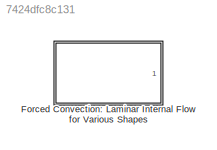
MODEL slx_7424dfc8c131
KIND library
CONFIG AbsTol = auto
CONFIG FixedStep = auto
CONFIG MaxStep = auto
CONFIG MinStep = auto
CONFIG RelTol = 1e-3
CONFIG SampleTimeConstraint = Unconstrained
CONFIG Solver = ode45
CONFIG SolverMode = Auto
CONFIG SolverName = ode45
CONFIG StartTime = 0.0
CONFIG StopTime = 10.0
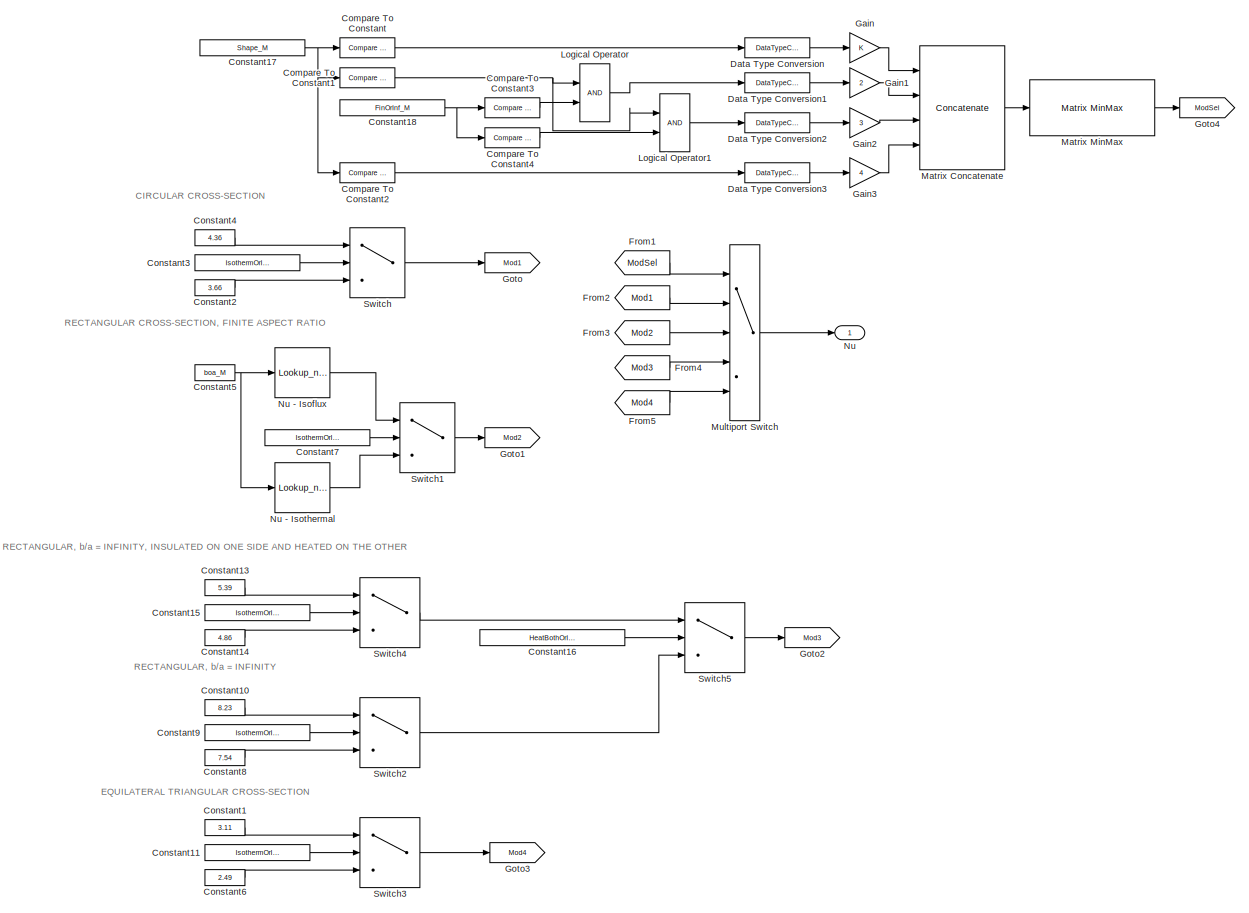
[diagram: Forced Convection: Laminar Internal Flow for Various Shapes - part 1/1, most of the canvas]
BLOCK [SubSystem] Forced Convection: Laminar Internal Flow for Various Shapes
  Ports = [0, 1]
  RequestExecContextInheritance = off
BLOCK [Reference] Forced Convection: Laminar Internal Flow for Various Shapes/Compare To Constant  REF=simulink/Logic and Bit
Operations/Compare
To Constant
  OutDataTypeStr = boolean
  Ports = [1, 1]
  SourceBlock = simulink/Logic and Bit\nOperations/Compare\nTo Constant
  SourceType = Compare To Constant
  ZeroCross = on
  const = 1
  relop = ==
BLOCK [Reference] Forced Convection: Laminar Internal Flow for Various Shapes/Compare To Constant1  REF=simulink/Logic and Bit
Operations/Compare
To Constant
  OutDataTypeStr = boolean
  Ports = [1, 1]
  SourceBlock = simulink/Logic and Bit\nOperations/Compare\nTo Constant
  SourceType = Compare To Constant
  ZeroCross = on
  const = 2
  relop = ==
BLOCK [Reference] Forced Convection: Laminar Internal Flow for Various Shapes/Compare To Constant2  REF=simulink/Logic and Bit
Operations/Compare
To Constant
  OutDataTypeStr = boolean
  Ports = [1, 1]
  SourceBlock = simulink/Logic and Bit\nOperations/Compare\nTo Constant
  SourceType = Compare To Constant
  ZeroCross = on
  const = 3
  relop = ==
BLOCK [Reference] Forced Convection: Laminar Internal Flow for Various Shapes/Compare To Constant3  REF=simulink/Logic and Bit
Operations/Compare
To Constant
  OutDataTypeStr = boolean
  Ports = [1, 1]
  SourceBlock = simulink/Logic and Bit\nOperations/Compare\nTo Constant
  SourceType = Compare To Constant
  ZeroCross = on
  const = 1
  relop = ==
BLOCK [Reference] Forced Convection: Laminar Internal Flow for Various Shapes/Compare To Constant4  REF=simulink/Logic and Bit
Operations/Compare
To Constant
  OutDataTypeStr = boolean
  Ports = [1, 1]
  SourceBlock = simulink/Logic and Bit\nOperations/Compare\nTo Constant
  SourceType = Compare To Constant
  ZeroCross = on
  const = 2
  relop = ==
BLOCK [Constant] Forced Convection: Laminar Internal Flow for Various Shapes/Constant1
  Value = 3.11
BLOCK [Constant] Forced Convection: Laminar Internal Flow for Various Shapes/Constant10
  Value = 8.23
BLOCK [Constant] Forced Convection: Laminar Internal Flow for Various Shapes/Constant11
  Value = IsothermOrIsoflux_M
BLOCK [Constant] Forced Convection: Laminar Internal Flow for Various Shapes/Constant13
  Value = 5.39
BLOCK [Constant] Forced Convection: Laminar Internal Flow for Various Shapes/Constant14
  Value = 4.86
BLOCK [Constant] Forced Convection: Laminar Internal Flow for Various Shapes/Constant15
  Value = IsothermOrIsoflux_M
BLOCK [Constant] Forced Convection: Laminar Internal Flow for Various Shapes/Constant16
  Value = HeatBothOrInsulateOne_M
BLOCK [Constant] Forced Convection: Laminar Internal Flow for Various Shapes/Constant17
  Value = Shape_M
BLOCK [Constant] Forced Convection: Laminar Internal Flow for Various Shapes/Constant18
  Value = FinOrInf_M
BLOCK [Constant] Forced Convection: Laminar Internal Flow for Various Shapes/Constant2
  Value = 3.66
BLOCK [Constant] Forced Convection: Laminar Internal Flow for Various Shapes/Constant3
  Value = IsothermOrIsoflux_M
BLOCK [Constant] Forced Convection: Laminar Internal Flow for Various Shapes/Constant4
  Value = 4.36
BLOCK [Constant] Forced Convection: Laminar Internal Flow for Various Shapes/Constant5
  Value = boa_M
BLOCK [Constant] Forced Convection: Laminar Internal Flow for Various Shapes/Constant6
  Value = 2.49
BLOCK [Constant] Forced Convection: Laminar Internal Flow for Various Shapes/Constant7
  Value = IsothermOrIsoflux_M
BLOCK [Constant] Forced Convection: Laminar Internal Flow for Various Shapes/Constant8
  Value = 7.54
BLOCK [Constant] Forced Convection: Laminar Internal Flow for Various Shapes/Constant9
  Value = IsothermOrIsoflux_M
BLOCK [DataTypeConversion] Forced Convection: Laminar Internal Flow for Various Shapes/Data Type Conversion
  OutDataTypeStr = double
  RndMeth = Floor
  SaturateOnIntegerOverflow = off
BLOCK [DataTypeConversion] Forced Convection: Laminar Internal Flow for Various Shapes/Data Type Conversion1
  OutDataTypeStr = double
  RndMeth = Floor
  SaturateOnIntegerOverflow = off
BLOCK [DataTypeConversion] Forced Convection: Laminar Internal Flow for Various Shapes/Data Type Conversion2
  OutDataTypeStr = double
  RndMeth = Floor
  SaturateOnIntegerOverflow = off
BLOCK [DataTypeConversion] Forced Convection: Laminar Internal Flow for Various Shapes/Data Type Conversion3
  OutDataTypeStr = double
  RndMeth = Floor
  SaturateOnIntegerOverflow = off
BLOCK [From] Forced Convection: Laminar Internal Flow for Various Shapes/From1
  GotoTag = ModSel
BLOCK [From] Forced Convection: Laminar Internal Flow for Various Shapes/From2
  GotoTag = Mod1
BLOCK [From] Forced Convection: Laminar Internal Flow for Various Shapes/From3
  GotoTag = Mod2
BLOCK [From] Forced Convection: Laminar Internal Flow for Various Shapes/From4
  GotoTag = Mod3
BLOCK [From] Forced Convection: Laminar Internal Flow for Various Shapes/From5
  GotoTag = Mod4
BLOCK [Gain] Forced Convection: Laminar Internal Flow for Various Shapes/Gain
  OutDataTypeStr = Inherit: Inherit via internal rule
  ParamDataTypeStr = Inherit: Inherit via internal rule
  SaturateOnIntegerOverflow = off
BLOCK [Gain] Forced Convection: Laminar Internal Flow for Various Shapes/Gain1
  Gain = 2
  OutDataTypeStr = Inherit: Inherit via internal rule
  ParamDataTypeStr = Inherit: Inherit via internal rule
  SaturateOnIntegerOverflow = off
BLOCK [Gain] Forced Convection: Laminar Internal Flow for Various Shapes/Gain2
  Gain = 3
  OutDataTypeStr = Inherit: Inherit via internal rule
  ParamDataTypeStr = Inherit: Inherit via internal rule
  SaturateOnIntegerOverflow = off
BLOCK [Gain] Forced Convection: Laminar Internal Flow for Various Shapes/Gain3
  Gain = 4
  OutDataTypeStr = Inherit: Inherit via internal rule
  ParamDataTypeStr = Inherit: Inherit via internal rule
  SaturateOnIntegerOverflow = off
BLOCK [Goto] Forced Convection: Laminar Internal Flow for Various Shapes/Goto
  GotoTag = Mod1
BLOCK [Goto] Forced Convection: Laminar Internal Flow for Various Shapes/Goto1
  GotoTag = Mod2
BLOCK [Goto] Forced Convection: Laminar Internal Flow for Various Shapes/Goto2
  GotoTag = Mod3
BLOCK [Goto] Forced Convection: Laminar Internal Flow for Various Shapes/Goto3
  GotoTag = Mod4
BLOCK [Goto] Forced Convection: Laminar Internal Flow for Various Shapes/Goto4
  GotoTag = ModSel
BLOCK [Logic] Forced Convection: Laminar Internal Flow for Various Shapes/Logical Operator
  AllPortsSameDT = off
  OutDataTypeStr = boolean
  Ports = [2, 1]
BLOCK [Logic] Forced Convection: Laminar Internal Flow for Various Shapes/Logical Operator1
  AllPortsSameDT = off
  OutDataTypeStr = boolean
  Ports = [2, 1]
BLOCK [Concatenate] Forced Convection: Laminar Internal Flow for Various Shapes/Matrix Concatenate
  ConcatenateDimension = 2
  Mode = Multidimensional array
  NumInputs = 4
  Ports = [4, 1]
BLOCK [Reference] Forced Convection: Laminar Internal Flow for Various Shapes/Matrix MinMax  REF=lib_GenTools_MinMax/Matrix MinMax
  BN_M = gcb
  Ports = [1, 1]
  SourceBlock = lib_GenTools_MinMax/Matrix MinMax
  SourceType = TSAT: Matrix MinMax Block
  all_M = off
  cols_M = off
  minmax_M = off
  rows_M = on
BLOCK [MultiPortSwitch] Forced Convection: Laminar Internal Flow for Various Shapes/Multiport Switch
  InputSameDT = off
  Inputs = 4
  Ports = [5, 1]
  SaturateOnIntegerOverflow = off
BLOCK [Outport] Forced Convection: Laminar Internal Flow for Various Shapes/Nu
  IconDisplay = Port number
BLOCK [Lookup_n-D] Forced Convection: Laminar Internal Flow for Various Shapes/Nu - Isoflux
  BreakpointsForDimension1 = [1 1.43 1.75 2 2.5 3 3.5 4 4.5 5 6 7 8 9 10 12 15 18 20 23 25 28 32 40 47 100]
  InternalRulePriority = Speed
  NumberOfTableDimensions = 1
  Ports = [1, 1]
  RndMeth = Simplest
  Table = [3.6100 3.7300 3.9349 4.1200 4.4722 4.7900 5.0760 5.3300 5.5517 5.7441 6.0556 6.2944 6.4900 6.6673 6.8316 7.1235 7.4767 7.7406 7.8735 8.0187 8.0851 8.1493 8.1899 8.2201 8.2300 8.2300]
BLOCK [Lookup_n-D] Forced Convection: Laminar Internal Flow for Various Shapes/Nu - Isothermal
  BreakpointsForDimension1 = [1 1.43 1.75 2 2.5 3 3.5 4 4.5 5 6 7 8 9 10 12 15 18 20 23 25 28 32 40 45 100]
  InternalRulePriority = Speed
  NumberOfTableDimensions = 1
  Ports = [1, 1]
  RndMeth = Simplest
  Table = [2.9800 3.0800 3.2418 3.3900 3.6839 3.9600 4.2124 4.4400 4.6435 4.8252 5.1332 5.3845 5.6000 5.7968 5.9790 6.3016 6.6904 6.9793 7.1243 7.2825 7.3553 7.4276 7.4800 7.5300 7.5400 7.5400]
BLOCK [Switch] Forced Convection: Laminar Internal Flow for Various Shapes/Switch
  Criteria = u2 > Threshold
  InputSameDT = off
  SaturateOnIntegerOverflow = off
  Threshold = 1.5
BLOCK [Switch] Forced Convection: Laminar Internal Flow for Various Shapes/Switch1
  Criteria = u2 > Threshold
  InputSameDT = off
  SaturateOnIntegerOverflow = off
  Threshold = 1.5
BLOCK [Switch] Forced Convection: Laminar Internal Flow for Various Shapes/Switch2
  Criteria = u2 > Threshold
  InputSameDT = off
  SaturateOnIntegerOverflow = off
  Threshold = 1.5
BLOCK [Switch] Forced Convection: Laminar Internal Flow for Various Shapes/Switch3
  Criteria = u2 > Threshold
  InputSameDT = off
  SaturateOnIntegerOverflow = off
  Threshold = 1.5
BLOCK [Switch] Forced Convection: Laminar Internal Flow for Various Shapes/Switch4
  Criteria = u2 > Threshold
  InputSameDT = off
  SaturateOnIntegerOverflow = off
  Threshold = 1.5
BLOCK [Switch] Forced Convection: Laminar Internal Flow for Various Shapes/Switch5
  Criteria = u2 > Threshold
  InputSameDT = off
  SaturateOnIntegerOverflow = off
  Threshold = 1.5
ANNOTATION Forced Convection: Laminar Internal Flow for Various Shapes: CIRCULAR CROSS-SECTION
ANNOTATION Forced Convection: Laminar Internal Flow for Various Shapes: EQUILATERAL TRIANGULAR CROSS-SECTION
ANNOTATION Forced Convection: Laminar Internal Flow for Various Shapes: RECTANGULAR CROSS-SECTION, FINITE ASPECT RATIO
ANNOTATION Forced Convection: Laminar Internal Flow for Various Shapes: RECTANGULAR, b/a = INFINITY
ANNOTATION Forced Convection: Laminar Internal Flow for Various Shapes: RECTANGULAR, b/a = INFINITY, INSULATED ON ONE SIDE AND HEATED ON THE OTHER
NET Forced Convection: Laminar Internal Flow for Various Shapes/Compare To Constant1:1 -> Forced Convection: Laminar Internal Flow for Various Shapes/Logical Operator1:1, Forced Convection: Laminar Internal Flow for Various Shapes/Logical Operator:1
LINE Forced Convection: Laminar Internal Flow for Various Shapes/Compare To Constant2:1 -> Forced Convection: Laminar Internal Flow for Various Shapes/Data Type Conversion3:1
LINE Forced Convection: Laminar Internal Flow for Various Shapes/Compare To Constant3:1 -> Forced Convection: Laminar Internal Flow for Various Shapes/Logical Operator:2
LINE Forced Convection: Laminar Internal Flow for Various Shapes/Compare To Constant4:1 -> Forced Convection: Laminar Internal Flow for Various Shapes/Logical Operator1:2
LINE Forced Convection: Laminar Internal Flow for Various Shapes/Compare To Constant:1 -> Forced Convection: Laminar Internal Flow for Various Shapes/Data Type Conversion:1
LINE Forced Convection: Laminar Internal Flow for Various Shapes/Constant10:1 -> Forced Convection: Laminar Internal Flow for Various Shapes/Switch2:1
LINE Forced Convection: Laminar Internal Flow for Various Shapes/Constant11:1 -> Forced Convection: Laminar Internal Flow for Various Shapes/Switch3:2
LINE Forced Convection: Laminar Internal Flow for Various Shapes/Constant13:1 -> Forced Convection: Laminar Internal Flow for Various Shapes/Switch4:1
LINE Forced Convection: Laminar Internal Flow for Various Shapes/Constant14:1 -> Forced Convection: Laminar Internal Flow for Various Shapes/Switch4:3
LINE Forced Convection: Laminar Internal Flow for Various Shapes/Constant15:1 -> Forced Convection: Laminar Internal Flow for Various Shapes/Switch4:2
LINE Forced Convection: Laminar Internal Flow for Various Shapes/Constant16:1 -> Forced Convection: Laminar Internal Flow for Various Shapes/Switch5:2
NET Forced Convection: Laminar Internal Flow for Various Shapes/Constant17:1 -> Forced Convection: Laminar Internal Flow for Various Shapes/Compare To Constant1:1, Forced Convection: Laminar Internal Flow for Various Shapes/Compare To Constant2:1, Forced Convection: Laminar Internal Flow for Various Shapes/Compare To Constant:1
NET Forced Convection: Laminar Internal Flow for Various Shapes/Constant18:1 -> Forced Convection: Laminar Internal Flow for Various Shapes/Compare To Constant3:1, Forced Convection: Laminar Internal Flow for Various Shapes/Compare To Constant4:1
LINE Forced Convection: Laminar Internal Flow for Various Shapes/Constant1:1 -> Forced Convection: Laminar Internal Flow for Various Shapes/Switch3:1
LINE Forced Convection: Laminar Internal Flow for Various Shapes/Constant2:1 -> Forced Convection: Laminar Internal Flow for Various Shapes/Switch:3
LINE Forced Convection: Laminar Internal Flow for Various Shapes/Constant3:1 -> Forced Convection: Laminar Internal Flow for Various Shapes/Switch:2
LINE Forced Convection: Laminar Internal Flow for Various Shapes/Constant4:1 -> Forced Convection: Laminar Internal Flow for Various Shapes/Switch:1
NET Forced Convection: Laminar Internal Flow for Various Shapes/Constant5:1 -> Forced Convection: Laminar Internal Flow for Various Shapes/Nu - Isoflux:1, Forced Convection: Laminar Internal Flow for Various Shapes/Nu - Isothermal:1
LINE Forced Convection: Laminar Internal Flow for Various Shapes/Constant6:1 -> Forced Convection: Laminar Internal Flow for Various Shapes/Switch3:3
LINE Forced Convection: Laminar Internal Flow for Various Shapes/Constant7:1 -> Forced Convection: Laminar Internal Flow for Various Shapes/Switch1:2
LINE Forced Convection: Laminar Internal Flow for Various Shapes/Constant8:1 -> Forced Convection: Laminar Internal Flow for Various Shapes/Switch2:3
LINE Forced Convection: Laminar Internal Flow for Various Shapes/Constant9:1 -> Forced Convection: Laminar Internal Flow for Various Shapes/Switch2:2
LINE Forced Convection: Laminar Internal Flow for Various Shapes/Data Type Conversion1:1 -> Forced Convection: Laminar Internal Flow for Various Shapes/Gain1:1
LINE Forced Convection: Laminar Internal Flow for Various Shapes/Data Type Conversion2:1 -> Forced Convection: Laminar Internal Flow for Various Shapes/Gain2:1
LINE Forced Convection: Laminar Internal Flow for Various Shapes/Data Type Conversion3:1 -> Forced Convection: Laminar Internal Flow for Various Shapes/Gain3:1
LINE Forced Convection: Laminar Internal Flow for Various Shapes/Data Type Conversion:1 -> Forced Convection: Laminar Internal Flow for Various Shapes/Gain:1
LINE Forced Convection: Laminar Internal Flow for Various Shapes/From1:1 -> Forced Convection: Laminar Internal Flow for Various Shapes/Multiport Switch:1
LINE Forced Convection: Laminar Internal Flow for Various Shapes/From2:1 -> Forced Convection: Laminar Internal Flow for Various Shapes/Multiport Switch:2
LINE Forced Convection: Laminar Internal Flow for Various Shapes/From3:1 -> Forced Convection: Laminar Internal Flow for Various Shapes/Multiport Switch:3
LINE Forced Convection: Laminar Internal Flow for Various Shapes/From4:1 -> Forced Convection: Laminar Internal Flow for Various Shapes/Multiport Switch:4
LINE Forced Convection: Laminar Internal Flow for Various Shapes/From5:1 -> Forced Convection: Laminar Internal Flow for Various Shapes/Multiport Switch:5
LINE Forced Convection: Laminar Internal Flow for Various Shapes/Gain1:1 -> Forced Convection: Laminar Internal Flow for Various Shapes/Matrix Concatenate:2
LINE Forced Convection: Laminar Internal Flow for Various Shapes/Gain2:1 -> Forced Convection: Laminar Internal Flow for Various Shapes/Matrix Concatenate:3
LINE Forced Convection: Laminar Internal Flow for Various Shapes/Gain3:1 -> Forced Convection: Laminar Internal Flow for Various Shapes/Matrix Concatenate:4
LINE Forced Convection: Laminar Internal Flow for Various Shapes/Gain:1 -> Forced Convection: Laminar Internal Flow for Various Shapes/Matrix Concatenate:1
LINE Forced Convection: Laminar Internal Flow for Various Shapes/Logical Operator1:1 -> Forced Convection: Laminar Internal Flow for Various Shapes/Data Type Conversion2:1
LINE Forced Convection: Laminar Internal Flow for Various Shapes/Logical Operator:1 -> Forced Convection: Laminar Internal Flow for Various Shapes/Data Type Conversion1:1
LINE Forced Convection: Laminar Internal Flow for Various Shapes/Matrix Concatenate:1 -> Forced Convection: Laminar Internal Flow for Various Shapes/Matrix MinMax:1
LINE Forced Convection: Laminar Internal Flow for Various Shapes/Matrix MinMax:1 -> Forced Convection: Laminar Internal Flow for Various Shapes/Goto4:1
LINE Forced Convection: Laminar Internal Flow for Various Shapes/Multiport Switch:1 -> Forced Convection: Laminar Internal Flow for Various Shapes/Nu:1
LINE Forced Convection: Laminar Internal Flow for Various Shapes/Nu - Isoflux:1 -> Forced Convection: Laminar Internal Flow for Various Shapes/Switch1:1
LINE Forced Convection: Laminar Internal Flow for Various Shapes/Nu - Isothermal:1 -> Forced Convection: Laminar Internal Flow for Various Shapes/Switch1:3
LINE Forced Convection: Laminar Internal Flow for Various Shapes/Switch1:1 -> Forced Convection: Laminar Internal Flow for Various Shapes/Goto1:1
LINE Forced Convection: Laminar Internal Flow for Various Shapes/Switch2:1 -> Forced Convection: Laminar Internal Flow for Various Shapes/Switch5:3
LINE Forced Convection: Laminar Internal Flow for Various Shapes/Switch3:1 -> Forced Convection: Laminar Internal Flow for Various Shapes/Goto3:1
LINE Forced Convection: Laminar Internal Flow for Various Shapes/Switch4:1 -> Forced Convection: Laminar Internal Flow for Various Shapes/Switch5:1
LINE Forced Convection: Laminar Internal Flow for Various Shapes/Switch5:1 -> Forced Convection: Laminar Internal Flow for Various Shapes/Goto2:1
LINE Forced Convection: Laminar Internal Flow for Various Shapes/Switch:1 -> Forced Convection: Laminar Internal Flow for Various Shapes/Goto:1
note: NET lines group one-source signal fan-out (src -> all destinations, sorted); 1:1 wires keep LINE
